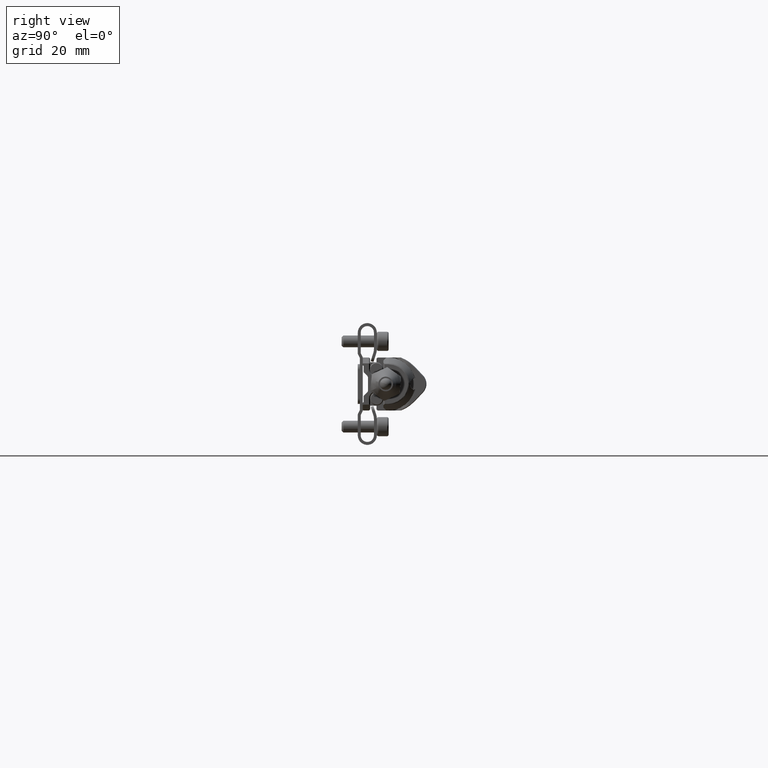
[diagram: clean part render]
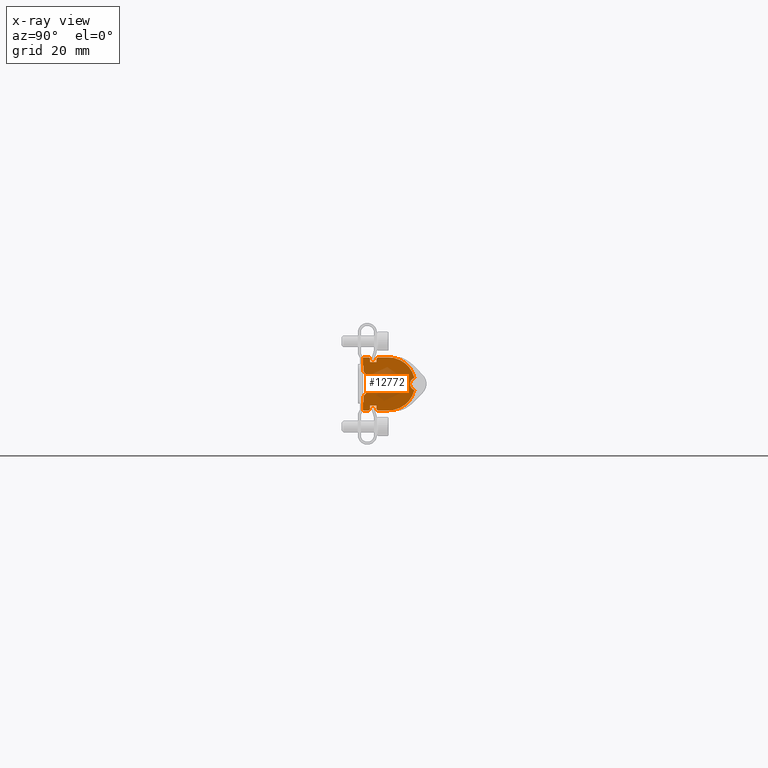
[diagram: x-ray — body ghosted, one internal face saturated and labeled with its STEP entity id]
A machine part, right view, then the same camera in x-ray: the body is ghosted and one INTERNAL B-rep face — a face not visible from any outside direction — is saturated and labeled: STEP entity #12772.
In plain terms, the highlighted planar face has unit normal (1, -0, 0).
Its self-contained STEP definition (entity closure, byte-faithful):
#337 = VERTEX_POINT ( 'NONE', #34687 ) ;
#349 = CARTESIAN_POINT ( 'NONE',  ( -0.1574803149606300579, -0.2992125984251967630, -0.3464566929133854334 ) ) ;
#409 = EDGE_CURVE ( 'NONE', #11359, #19109, #21300, .T. ) ;
#501 = VERTEX_POINT ( 'NONE', #18130 ) ;
#589 = ORIENTED_EDGE ( 'NONE', *, *, #2069, .F. ) ;
#700 = ORIENTED_EDGE ( 'NONE', *, *, #32594, .T. ) ;
#831 = DIRECTION ( 'NONE',  ( 1.000000000000000000, -1.033975794397574105E-25, 2.391543914929064682E-17 ) ) ;
#915 = CARTESIAN_POINT ( 'NONE',  ( -0.1574803149606300579, -0.3070866141732283561, 0.3543307086614176926 ) ) ;
#1008 = EDGE_CURVE ( 'NONE', #32174, #337, #20909, .T. ) ;
#1032 = VERTEX_POINT ( 'NONE', #31845 ) ;
#1144 = CARTESIAN_POINT ( 'NONE',  ( -0.1574803149606300579, -0.1232283464566929221, 0.3385826771653547285 ) ) ;
#1249 = DIRECTION ( 'NONE',  ( 2.391543914929064682E-17, 1.201068257667177748E-16, -1.000000000000000000 ) ) ;
#1311 = LINE ( 'NONE', #28216, #10103 ) ;
#1348 = EDGE_CURVE ( 'NONE', #26501, #11874, #23877, .T. ) ;
#1440 = CIRCLE ( 'NONE', #17148, 0.003937007874015741038 ) ;
#1471 = ORIENTED_EDGE ( 'NONE', *, *, #12889, .T. ) ;
#1636 = DIRECTION ( 'NONE',  ( 0.000000000000000000, 0.000000000000000000, 1.000000000000000000 ) ) ;
#1653 = EDGE_CURVE ( 'NONE', #33654, #18712, #4446, .T. ) ;
#1701 = CIRCLE ( 'NONE', #6206, 0.03937007874015747977 ) ;
#1736 = CARTESIAN_POINT ( 'NONE',  ( -0.1574803149606300579, -0.2952755905967039407, 0.2440944881539811040 ) ) ;
#1924 = CARTESIAN_POINT ( 'NONE',  ( -0.1574803149606300579, -0.2755905511811022612, -0.1656341252362201200 ) ) ;
#2069 = EDGE_CURVE ( 'NONE', #33654, #25708, #12878, .T. ) ;
#2100 = CARTESIAN_POINT ( 'NONE',  ( -0.1574803149606300579, -0.3070866141732283561, 0.3543307086614176926 ) ) ;
#2429 = ORIENTED_EDGE ( 'NONE', *, *, #16990, .T. ) ;
#2456 = CARTESIAN_POINT ( 'NONE',  ( -0.1574803149606300579, -0.1074803149116314166, -0.3543307086614169155 ) ) ;
#2461 = DIRECTION ( 'NONE',  ( 1.691076924432268610E-17, 0.7071067822865940711, -0.7071067800865009634 ) ) ;
#2505 = EDGE_CURVE ( 'NONE', #9558, #16097, #32032, .T. ) ;
#2510 = AXIS2_PLACEMENT_3D ( 'NONE', #29030, #26553, #26205 ) ;
#2565 = VERTEX_POINT ( 'NONE', #25094 ) ;
#2896 = EDGE_CURVE ( 'NONE', #10550, #9558, #23309, .T. ) ;
#2911 = VERTEX_POINT ( 'NONE', #21196 ) ;
#2914 = CARTESIAN_POINT ( 'NONE',  ( -0.1574803149606300579, -0.2244094488316446534, 0.3543307086639671533 ) ) ;
#3122 = AXIS2_PLACEMENT_3D ( 'NONE', #25038, #19921, #28356 ) ;
#3410 = CARTESIAN_POINT ( 'NONE',  ( -0.1574803149606300579, -0.3070866141732283561, 0.3464566929133862105 ) ) ;
#3467 = CARTESIAN_POINT ( 'NONE',  ( -0.1574803149606300579, -0.2952755906080846149, -0.2440944881189857918 ) ) ;
#3560 = DIRECTION ( 'NONE',  ( -1.000000000000000000, 1.033975794397574105E-25, -2.391543914929064682E-17 ) ) ;
#3607 = DIRECTION ( 'NONE',  ( 0.000000000000000000, 0.000000000000000000, -1.000000000000000000 ) ) ;
#3698 = AXIS2_PLACEMENT_3D ( 'NONE', #8192, #15737, #13805 ) ;
#4036 = DIRECTION ( 'NONE',  ( -1.000000000000000000, 1.033975794397574105E-25, -2.391543914929064682E-17 ) ) ;
#4119 = DIRECTION ( 'NONE',  ( -1.033975765673499961E-25, -1.000000000000000000, -1.201068257667177748E-16 ) ) ;
#4152 = VERTEX_POINT ( 'NONE', #17545 ) ;
#4237 = VECTOR ( 'NONE', #2461, 39.37007874015748143 ) ;
#4308 = CARTESIAN_POINT ( 'NONE',  ( -0.1574803149606300579, -0.2477517015304221693, -0.1099564259472146088 ) ) ;
#4446 = CIRCLE ( 'NONE', #24111, 0.003937007874015741038 ) ;
#4780 = LINE ( 'NONE', #33989, #32348 ) ;
#4834 = VERTEX_POINT ( 'NONE', #24913 ) ;
#5135 = ORIENTED_EDGE ( 'NONE', *, *, #23421, .T. ) ;
#5216 = CARTESIAN_POINT ( 'NONE',  ( -0.1574803149606300579, -0.2086614173228346081, 0.3385826771653547285 ) ) ;
#5393 = VERTEX_POINT ( 'NONE', #24132 ) ;
#5401 = DIRECTION ( 'NONE',  ( 1.000000000000000000, -1.033975794397574105E-25, 2.391543914929064682E-17 ) ) ;
#5630 = CARTESIAN_POINT ( 'NONE',  ( -0.1574803149606300579, 0.03856533019685044056, -0.3543307086614169155 ) ) ;
#5924 = EDGE_CURVE ( 'NONE', #21656, #18328, #26209, .T. ) ;
#6206 = AXIS2_PLACEMENT_3D ( 'NONE', #13937, #3560, #8846 ) ;
#6243 = DIRECTION ( 'NONE',  ( -1.000000000000000000, 1.033975794397574105E-25, -2.391543914929064682E-17 ) ) ;
#6307 = VERTEX_POINT ( 'NONE', #17382 ) ;
#6321 = EDGE_CURVE ( 'NONE', #2565, #23567, #25462, .T. ) ;
#6545 = VERTEX_POINT ( 'NONE', #31113 ) ;
#6588 = ORIENTED_EDGE ( 'NONE', *, *, #409, .T. ) ;
#6673 = DIRECTION ( 'NONE',  ( 0.000000000000000000, -2.602085213965210642E-15, -1.000000000000000000 ) ) ;
#6934 = ORIENTED_EDGE ( 'NONE', *, *, #5924, .T. ) ;
#7048 = CIRCLE ( 'NONE', #13774, 0.007874015748031516770 ) ;
#7184 = EDGE_CURVE ( 'NONE', #21656, #337, #7048, .T. ) ;
#7254 = CARTESIAN_POINT ( 'NONE',  ( -0.1574803149606300579, -0.2992125984251968740, 0.3464566929133862105 ) ) ;
#7286 = LINE ( 'NONE', #28747, #33963 ) ;
#7455 = CARTESIAN_POINT ( 'NONE',  ( -0.1574803149606300579, -0.2952755906536075337, 0.3543307086614176926 ) ) ;
#7649 = ORIENTED_EDGE ( 'NONE', *, *, #34146, .T. ) ;
#7694 = CARTESIAN_POINT ( 'NONE',  ( -0.1574803149606300579, -0.2086614173228346081, 0.3385826771653547285 ) ) ;
#7836 = LINE ( 'NONE', #13627, #26922 ) ;
#7904 = DIRECTION ( 'NONE',  ( 0.000000000000000000, 0.000000000000000000, 1.000000000000000000 ) ) ;
#8192 = CARTESIAN_POINT ( 'NONE',  ( -0.1574803149606300579, 0.03856533019685044056, 4.780733988912460139E-16 ) ) ;
#8270 = DIRECTION ( 'NONE',  ( -1.000000000000000000, 1.033975794397574105E-25, -2.391543914929064682E-17 ) ) ;
#8846 = DIRECTION ( 'NONE',  ( 0.000000000000000000, 0.000000000000000000, 1.000000000000000000 ) ) ;
#8880 = ORIENTED_EDGE ( 'NONE', *, *, #32303, .T. ) ;
#9128 = VECTOR ( 'NONE', #20692, 39.37007874015748143 ) ;
#9291 = VECTOR ( 'NONE', #18177, 39.37007874015748143 ) ;
#9307 = CARTESIAN_POINT ( 'NONE',  ( -0.1574803149606300579, -0.3070866141732282451, -0.3543307086614169155 ) ) ;
#9391 = VERTEX_POINT ( 'NONE', #4308 ) ;
#9558 = VERTEX_POINT ( 'NONE', #32277 ) ;
#9941 = CARTESIAN_POINT ( 'NONE',  ( -0.1574803149606300579, -0.1232283464566928527, -0.2913385826771650589 ) ) ;
#10098 = VERTEX_POINT ( 'NONE', #29062 ) ;
#10103 = VECTOR ( 'NONE', #4119, 39.37007874015748143 ) ;
#10335 = CIRCLE ( 'NONE', #30023, 0.01968503937007873988 ) ;
#10390 = DIRECTION ( 'NONE',  ( 2.391543914929064682E-17, 1.201068257667177748E-16, -1.000000000000000000 ) ) ;
#10550 = VERTEX_POINT ( 'NONE', #25165 ) ;
#10551 = EDGE_CURVE ( 'NONE', #29987, #10550, #30811, .T. ) ;
#10641 = CARTESIAN_POINT ( 'NONE',  ( -0.1574803149606300579, -0.2362204723614631796, 0.3543307086614176926 ) ) ;
#10804 = ORIENTED_EDGE ( 'NONE', *, *, #7184, .F. ) ;
#10813 = CIRCLE ( 'NONE', #19821, 0.03937007874015747977 ) ;
#10843 = ORIENTED_EDGE ( 'NONE', *, *, #17609, .T. ) ;
#10966 = VECTOR ( 'NONE', #20607, 39.37007874015748143 ) ;
#10987 = EDGE_CURVE ( 'NONE', #2565, #19109, #18207, .T. ) ;
#11021 = VERTEX_POINT ( 'NONE', #32549 ) ;
#11028 = ORIENTED_EDGE ( 'NONE', *, *, #25472, .T. ) ;
#11222 = VECTOR ( 'NONE', #26757, 39.37007874015748143 ) ;
#11235 = CARTESIAN_POINT ( 'NONE',  ( -0.1574803149606300579, -0.3070866141732283561, 0.3543307086614176926 ) ) ;
#11245 = ORIENTED_EDGE ( 'NONE', *, *, #30325, .F. ) ;
#11342 = CARTESIAN_POINT ( 'NONE',  ( -0.1574803149606300579, -0.1232283464738122142, 0.2913385826624019792 ) ) ;
#11359 = VERTEX_POINT ( 'NONE', #30425 ) ;
#11513 = CARTESIAN_POINT ( 'NONE',  ( -0.1574803149606300579, 0.4114990196062992545, 4.780733988912460139E-16 ) ) ;
#11514 = VECTOR ( 'NONE', #14233, 39.37007874015748143 ) ;
#11867 = ORIENTED_EDGE ( 'NONE', *, *, #1348, .T. ) ;
#11874 = VERTEX_POINT ( 'NONE', #5216 ) ;
#11971 = EDGE_CURVE ( 'NONE', #16097, #25708, #19803, .T. ) ;
#12041 = CARTESIAN_POINT ( 'NONE',  ( -0.1574803149606300579, -0.1232283464566929221, 0.3385826771653547285 ) ) ;
#12087 = VERTEX_POINT ( 'NONE', #3467 ) ;
#12096 = CIRCLE ( 'NONE', #33475, 0.007874015748031482076 ) ;
#12654 = DIRECTION ( 'NONE',  ( -1.000000000000000000, 1.033975794397574105E-25, -2.391543914929064682E-17 ) ) ;
#12772 = ADVANCED_FACE ( 'NONE', ( #22193 ), #32951, .T. ) ;
#12878 = CIRCLE ( 'NONE', #3698, 0.3543307086614173040 ) ;
#12889 = EDGE_CURVE ( 'NONE', #28407, #20715, #22427, .T. ) ;
#13023 = CARTESIAN_POINT ( 'NONE',  ( -0.1574803149606300579, -0.2244094488188976555, 0.3543307086614176926 ) ) ;
#13154 = ORIENTED_EDGE ( 'NONE', *, *, #16049, .F. ) ;
#13248 = EDGE_CURVE ( 'NONE', #12087, #20040, #7286, .T. ) ;
#13354 = ORIENTED_EDGE ( 'NONE', *, *, #2505, .T. ) ;
#13627 = CARTESIAN_POINT ( 'NONE',  ( -0.1574803149606300579, -0.2895099760236219955, -0.1517147004330704763 ) ) ;
#13737 = CIRCLE ( 'NONE', #33966, 0.08566121303149605570 ) ;
#13774 = AXIS2_PLACEMENT_3D ( 'NONE', #7254, #25550, #1636 ) ;
#13782 = CARTESIAN_POINT ( 'NONE',  ( -0.1574803149606300579, -0.2244094488316445979, -0.3543307086639660985 ) ) ;
#13786 = VECTOR ( 'NONE', #14625, 39.37007874015748143 ) ;
#13805 = DIRECTION ( 'NONE',  ( 0.000000000000000000, -1.204669080539449590E-16, 1.000000000000000000 ) ) ;
#13937 = CARTESIAN_POINT ( 'NONE',  ( -0.1574803149606300579, -0.2755905511811023167, -0.08211757629921219437 ) ) ;
#14158 = ORIENTED_EDGE ( 'NONE', *, *, #6321, .T. ) ;
#14233 = DIRECTION ( 'NONE',  ( 1.033975765673499961E-25, 1.000000000000000000, 1.201068257667177748E-16 ) ) ;
#14259 = CARTESIAN_POINT ( 'NONE',  ( -0.1574803149606300579, -0.2086614173427737418, -0.2913385826624011465 ) ) ;
#14274 = DIRECTION ( 'NONE',  ( 1.000000000000000000, -1.033975794397573876E-25, 2.391543914929064682E-17 ) ) ;
#14625 = DIRECTION ( 'NONE',  ( 1.691076927063079054E-17, 0.7071067811865471286, -0.7071067811865479058 ) ) ;
#14794 = EDGE_CURVE ( 'NONE', #4834, #28407, #31240, .T. ) ;
#15007 = DIRECTION ( 'NONE',  ( -2.391543914929064682E-17, -1.201068257667177748E-16, 1.000000000000000000 ) ) ;
#15225 = CARTESIAN_POINT ( 'NONE',  ( -0.1574803149606300579, -0.2992125984251968185, 0.2440944881889767493 ) ) ;
#15737 = DIRECTION ( 'NONE',  ( -1.000000000000000000, 1.033975794397574105E-25, -2.391543914929064682E-17 ) ) ;
#15886 = ORIENTED_EDGE ( 'NONE', *, *, #10987, .F. ) ;
#15972 = DIRECTION ( 'NONE',  ( -1.033975765673499961E-25, -1.000000000000000000, -1.201068257667177748E-16 ) ) ;
#16049 = EDGE_CURVE ( 'NONE', #4152, #1032, #28345, .T. ) ;
#16097 = VERTEX_POINT ( 'NONE', #2456 ) ;
#16109 = DIRECTION ( 'NONE',  ( 2.391543914929064682E-17, 1.201068257667177748E-16, -1.000000000000000000 ) ) ;
#16276 = CARTESIAN_POINT ( 'NONE',  ( -0.1574803149606300579, -0.1232283464566929221, 0.3385826771653547285 ) ) ;
#16368 = CIRCLE ( 'NONE', #27048, 0.3543307086614173040 ) ;
#16612 = ORIENTED_EDGE ( 'NONE', *, *, #32428, .F. ) ;
#16753 = VERTEX_POINT ( 'NONE', #25971 ) ;
#16873 = CARTESIAN_POINT ( 'NONE',  ( -0.1574803149606300579, -0.3070866141732283561, 0.2519685039370082591 ) ) ;
#16987 = ORIENTED_EDGE ( 'NONE', *, *, #2896, .T. ) ;
#16990 = EDGE_CURVE ( 'NONE', #6545, #34677, #16368, .T. ) ;
#17148 = AXIS2_PLACEMENT_3D ( 'NONE', #17438, #20080, #25187 ) ;
#17169 = CARTESIAN_POINT ( 'NONE',  ( -0.1574803149606300579, -0.1074803149606298469, -0.3543307086614169155 ) ) ;
#17319 = DIRECTION ( 'NONE',  ( 2.391543914929064682E-17, 1.201068257667177748E-16, -1.000000000000000000 ) ) ;
#17382 = CARTESIAN_POINT ( 'NONE',  ( -0.1574803149606300579, -0.2086614173228345526, -0.3385826771653540068 ) ) ;
#17415 = CARTESIAN_POINT ( 'NONE',  ( -0.1574803149606300579, -0.3070866141732282451, -0.2913385826574800275 ) ) ;
#17438 = CARTESIAN_POINT ( 'NONE',  ( -0.1574803149606300579, 0.3788770910629921662, 0.08344849291338625463 ) ) ;
#17545 = CARTESIAN_POINT ( 'NONE',  ( -0.1574803149606300579, -0.2895099760050149351, 0.1517147004107921027 ) ) ;
#17609 = EDGE_CURVE ( 'NONE', #11021, #9391, #1701, .T. ) ;
#17692 = VECTOR ( 'NONE', #25408, 39.37007874015748854 ) ;
#17716 = AXIS2_PLACEMENT_3D ( 'NONE', #915, #14274, #1249 ) ;
#17724 = ORIENTED_EDGE ( 'NONE', *, *, #20491, .T. ) ;
#17734 = VECTOR ( 'NONE', #34578, 39.37007874015748143 ) ;
#17917 = ORIENTED_EDGE ( 'NONE', *, *, #20808, .T. ) ;
#18128 = LINE ( 'NONE', #13023, #10966 ) ;
#18130 = CARTESIAN_POINT ( 'NONE',  ( -0.1574803149606300579, -0.2895099760050148796, -0.1517147004107909647 ) ) ;
#18177 = DIRECTION ( 'NONE',  ( 2.391543914929064682E-17, 1.201068257667177748E-16, -1.000000000000000000 ) ) ;
#18207 = CIRCLE ( 'NONE', #20464, 0.007874015748031516770 ) ;
#18267 = CIRCLE ( 'NONE', #3122, 0.007874015748031482076 ) ;
#18328 = VERTEX_POINT ( 'NONE', #16873 ) ;
#18416 = DIRECTION ( 'NONE',  ( -2.391543914929064682E-17, -1.201068257667177748E-16, 1.000000000000000000 ) ) ;
#18712 = VERTEX_POINT ( 'NONE', #30375 ) ;
#18742 = CARTESIAN_POINT ( 'NONE',  ( -0.1574803149606300579, -0.2244094488188975445, -0.3543307086614169155 ) ) ;
#19109 = VERTEX_POINT ( 'NONE', #25065 ) ;
#19291 = DIRECTION ( 'NONE',  ( 0.000000000000000000, -1.903377147252329919E-15, 1.000000000000000000 ) ) ;
#19446 = EDGE_LOOP ( 'NONE', ( #25079, #16987, #13354, #21293, #589, #29199, #21732, #16612, #2429, #17917, #32128, #1471, #7649, #11867, #19752, #30688, #10804, #6934, #23941, #26653, #700, #13154, #8880, #25938, #26826, #10843, #21097, #11245, #5135, #29548, #31608, #6588, #15886, #14158, #17724, #11028 ) ) ;
#19487 = DIRECTION ( 'NONE',  ( 0.000000000000000000, 3.469446951953620500E-14, 1.000000000000000000 ) ) ;
#19744 = CARTESIAN_POINT ( 'NONE',  ( -0.1574803149606300579, -0.2895099760236220510, 0.1517147004330711979 ) ) ;
#19752 = ORIENTED_EDGE ( 'NONE', *, *, #32632, .T. ) ;
#19803 = LINE ( 'NONE', #17169, #23319 ) ;
#19821 = AXIS2_PLACEMENT_3D ( 'NONE', #20209, #4036, #6673 ) ;
#19921 = DIRECTION ( 'NONE',  ( -1.000000000000000000, 1.033975794397574105E-25, -2.391543914929064682E-17 ) ) ;
#20040 = VERTEX_POINT ( 'NONE', #22818 ) ;
#20080 = DIRECTION ( 'NONE',  ( -1.000000000000000000, 1.033975794397574105E-25, -2.391543914929064682E-17 ) ) ;
#20161 = VECTOR ( 'NONE', #18416, 39.37007874015748143 ) ;
#20209 = CARTESIAN_POINT ( 'NONE',  ( -0.1574803149606300579, -0.2755905511811023167, 0.08211757629921294377 ) ) ;
#20464 = AXIS2_PLACEMENT_3D ( 'NONE', #349, #8270, #7904 ) ;
#20491 = EDGE_CURVE ( 'NONE', #23567, #6307, #33899, .T. ) ;
#20607 = DIRECTION ( 'NONE',  ( -1.691076927063079054E-17, -0.7071067811865471286, 0.7071067811865479058 ) ) ;
#20642 = EDGE_CURVE ( 'NONE', #2911, #11021, #32491, .T. ) ;
#20686 = DIRECTION ( 'NONE',  ( 1.033975765673499961E-25, 1.000000000000000000, 1.201068257667177748E-16 ) ) ;
#20692 = DIRECTION ( 'NONE',  ( -1.033975765673499961E-25, -1.000000000000000000, -1.201068257667177748E-16 ) ) ;
#20715 = VERTEX_POINT ( 'NONE', #11342 ) ;
#20808 = EDGE_CURVE ( 'NONE', #34677, #4834, #1311, .T. ) ;
#20909 = LINE ( 'NONE', #2100, #33106 ) ;
#21071 = VECTOR ( 'NONE', #20686, 39.37007874015748143 ) ;
#21097 = ORIENTED_EDGE ( 'NONE', *, *, #25355, .F. ) ;
#21196 = CARTESIAN_POINT ( 'NONE',  ( -0.1574803149606300579, -0.2362204724012040846, 0.08211757629921294377 ) ) ;
#21293 = ORIENTED_EDGE ( 'NONE', *, *, #11971, .T. ) ;
#21300 = LINE ( 'NONE', #29396, #11222 ) ;
#21656 = VERTEX_POINT ( 'NONE', #3410 ) ;
#21732 = ORIENTED_EDGE ( 'NONE', *, *, #30868, .T. ) ;
#21785 = CARTESIAN_POINT ( 'NONE',  ( -0.1574803149606300579, 0.3827008187155472307, -0.08438611641395545038 ) ) ;
#21935 = CARTESIAN_POINT ( 'NONE',  ( -0.1574803149606300579, 0.03856533019685044056, 4.780733988912460139E-16 ) ) ;
#22112 = CARTESIAN_POINT ( 'NONE',  ( -0.1574803149606300579, 0.3788770910629921662, -0.08344849291338539421 ) ) ;
#22193 = FACE_OUTER_BOUND ( 'NONE', #19446, .T. ) ;
#22427 = LINE ( 'NONE', #1144, #30108 ) ;
#22818 = CARTESIAN_POINT ( 'NONE',  ( -0.1574803149606300579, -0.2992125984251967630, -0.2440944881889759999 ) ) ;
#22973 = LINE ( 'NONE', #15225, #21071 ) ;
#23309 = LINE ( 'NONE', #9941, #17734 ) ;
#23319 = VECTOR ( 'NONE', #33197, 39.37007874015748143 ) ;
#23326 = CARTESIAN_POINT ( 'NONE',  ( -0.1574803149606300579, -0.2086614173228346081, 0.2913385826624019792 ) ) ;
#23332 = LINE ( 'NONE', #34082, #9128 ) ;
#23421 = EDGE_CURVE ( 'NONE', #16753, #12087, #31575, .T. ) ;
#23464 = DIRECTION ( 'NONE',  ( -1.033975765673499961E-25, -1.000000000000000000, -1.201068257667177748E-16 ) ) ;
#23567 = VERTEX_POINT ( 'NONE', #13782 ) ;
#23747 = EDGE_CURVE ( 'NONE', #5393, #18328, #18267, .T. ) ;
#23877 = LINE ( 'NONE', #7694, #20161 ) ;
#23941 = ORIENTED_EDGE ( 'NONE', *, *, #23747, .F. ) ;
#24092 = DIRECTION ( 'NONE',  ( 2.391543914929064682E-17, 1.201068257667177748E-16, -1.000000000000000000 ) ) ;
#24111 = AXIS2_PLACEMENT_3D ( 'NONE', #22112, #831, #19487 ) ;
#24132 = CARTESIAN_POINT ( 'NONE',  ( -0.1574803149606300579, -0.2992125984251968185, 0.2440944881889767493 ) ) ;
#24357 = DIRECTION ( 'NONE',  ( -1.691076912440451637E-17, 0.7071067811865479058, 0.7071067811865471286 ) ) ;
#24363 = VECTOR ( 'NONE', #33454, 39.37007874015748143 ) ;
#24913 = CARTESIAN_POINT ( 'NONE',  ( -0.1574803149606300579, -0.1074803149197976343, 0.3543307086695841601 ) ) ;
#25038 = CARTESIAN_POINT ( 'NONE',  ( -0.1574803149606300579, -0.2992125984251968185, 0.2519685039370082591 ) ) ;
#25065 = CARTESIAN_POINT ( 'NONE',  ( -0.1574803149606300579, -0.3070866141732282451, -0.3464566929133854334 ) ) ;
#25079 = ORIENTED_EDGE ( 'NONE', *, *, #10551, .T. ) ;
#25094 = CARTESIAN_POINT ( 'NONE',  ( -0.1574803149606300579, -0.2992125984251967630, -0.3543307086614169155 ) ) ;
#25165 = CARTESIAN_POINT ( 'NONE',  ( -0.1574803149606300579, -0.1232283464566928527, -0.2913385826624011465 ) ) ;
#25187 = DIRECTION ( 'NONE',  ( 0.000000000000000000, 0.000000000000000000, 1.000000000000000000 ) ) ;
#25355 = EDGE_CURVE ( 'NONE', #501, #9391, #7836, .T. ) ;
#25408 = DIRECTION ( 'NONE',  ( 1.691076912440450096E-17, -0.7071067811865483499, -0.7071067811865465735 ) ) ;
#25462 = LINE ( 'NONE', #9307, #11514 ) ;
#25472 = EDGE_CURVE ( 'NONE', #6307, #29987, #26751, .T. ) ;
#25521 = LINE ( 'NONE', #19744, #13786 ) ;
#25550 = DIRECTION ( 'NONE',  ( -1.000000000000000000, 1.033975794397574105E-25, -2.391543914929064682E-17 ) ) ;
#25708 = VERTEX_POINT ( 'NONE', #5630 ) ;
#25934 = VERTEX_POINT ( 'NONE', #1736 ) ;
#25938 = ORIENTED_EDGE ( 'NONE', *, *, #34833, .T. ) ;
#25971 = CARTESIAN_POINT ( 'NONE',  ( -0.1574803149606300579, -0.2952755906023942223, -0.1656341252362201200 ) ) ;
#26205 = DIRECTION ( 'NONE',  ( 0.000000000000000000, 0.000000000000000000, -1.000000000000000000 ) ) ;
#26209 = LINE ( 'NONE', #11235, #32887 ) ;
#26403 = VECTOR ( 'NONE', #32664, 39.37007874015748143 ) ;
#26501 = VERTEX_POINT ( 'NONE', #23326 ) ;
#26553 = DIRECTION ( 'NONE',  ( -1.000000000000000000, 1.033975794397574105E-25, -2.391543914929064682E-17 ) ) ;
#26558 = CARTESIAN_POINT ( 'NONE',  ( -0.1574803149606300579, -0.1232283464566928527, -0.3385826771653540068 ) ) ;
#26653 = ORIENTED_EDGE ( 'NONE', *, *, #31881, .T. ) ;
#26751 = LINE ( 'NONE', #34026, #32606 ) ;
#26757 = DIRECTION ( 'NONE',  ( 2.391543914929064682E-17, 1.201068257667177748E-16, -1.000000000000000000 ) ) ;
#26826 = ORIENTED_EDGE ( 'NONE', *, *, #20642, .T. ) ;
#26834 = CARTESIAN_POINT ( 'NONE',  ( -0.1574803149606300579, -0.2992125984251967630, -0.2519685039370075375 ) ) ;
#26922 = VECTOR ( 'NONE', #24357, 39.37007874015748143 ) ;
#27048 = AXIS2_PLACEMENT_3D ( 'NONE', #21935, #5401, #19291 ) ;
#28216 = CARTESIAN_POINT ( 'NONE',  ( -0.1574803149606300579, -0.3070866141732283561, 0.3543307086614176926 ) ) ;
#28253 = VERTEX_POINT ( 'NONE', #29310 ) ;
#28345 = CIRCLE ( 'NONE', #2510, 0.01968503937007873988 ) ;
#28356 = DIRECTION ( 'NONE',  ( 0.000000000000000000, 0.000000000000000000, 1.000000000000000000 ) ) ;
#28407 = VERTEX_POINT ( 'NONE', #16276 ) ;
#28747 = CARTESIAN_POINT ( 'NONE',  ( -0.1574803149606300579, -0.2992125984251967630, -0.2440944881889759999 ) ) ;
#29030 = CARTESIAN_POINT ( 'NONE',  ( -0.1574803149606300579, -0.2755905511811023167, 0.1656341252362207861 ) ) ;
#29062 = CARTESIAN_POINT ( 'NONE',  ( -0.1574803149606300579, 0.3803105211884074133, 0.07978170833821263130 ) ) ;
#29199 = ORIENTED_EDGE ( 'NONE', *, *, #1653, .T. ) ;
#29232 = VECTOR ( 'NONE', #16109, 39.37007874015748143 ) ;
#29310 = CARTESIAN_POINT ( 'NONE',  ( -0.1574803149606300579, -0.2477517015304222248, 0.1099564259472157052 ) ) ;
#29396 = CARTESIAN_POINT ( 'NONE',  ( -0.1574803149606300579, -0.3070866141732283561, 0.3543307086614176926 ) ) ;
#29548 = ORIENTED_EDGE ( 'NONE', *, *, #13248, .T. ) ;
#29987 = VERTEX_POINT ( 'NONE', #14259 ) ;
#30023 = AXIS2_PLACEMENT_3D ( 'NONE', #1924, #12654, #31665 ) ;
#30108 = VECTOR ( 'NONE', #17319, 39.37007874015748143 ) ;
#30325 = EDGE_CURVE ( 'NONE', #16753, #501, #10335, .T. ) ;
#30375 = CARTESIAN_POINT ( 'NONE',  ( -0.1574803149606300579, 0.3803105211910097760, -0.07978170834512157694 ) ) ;
#30425 = CARTESIAN_POINT ( 'NONE',  ( -0.1574803149606300579, -0.3070866141732282451, -0.2519685039370075375 ) ) ;
#30688 = ORIENTED_EDGE ( 'NONE', *, *, #1008, .T. ) ;
#30811 = LINE ( 'NONE', #17415, #24363 ) ;
#30868 = EDGE_CURVE ( 'NONE', #18712, #10098, #13737, .T. ) ;
#31113 = CARTESIAN_POINT ( 'NONE',  ( -0.1574803149606300579, 0.3827008187031043507, 0.08438611646469847127 ) ) ;
#31240 = LINE ( 'NONE', #12041, #17692 ) ;
#31575 = LINE ( 'NONE', #7455, #9291 ) ;
#31608 = ORIENTED_EDGE ( 'NONE', *, *, #32221, .F. ) ;
#31665 = DIRECTION ( 'NONE',  ( 0.000000000000000000, 0.000000000000000000, 1.000000000000000000 ) ) ;
#31845 = CARTESIAN_POINT ( 'NONE',  ( -0.1574803149606300579, -0.2952755905853232110, 0.1656341252362207861 ) ) ;
#31881 = EDGE_CURVE ( 'NONE', #5393, #25934, #22973, .T. ) ;
#31958 = DIRECTION ( 'NONE',  ( 0.000000000000000000, 0.000000000000000000, 1.000000000000000000 ) ) ;
#32032 = LINE ( 'NONE', #26558, #4237 ) ;
#32128 = ORIENTED_EDGE ( 'NONE', *, *, #14794, .T. ) ;
#32174 = VERTEX_POINT ( 'NONE', #2914 ) ;
#32221 = EDGE_CURVE ( 'NONE', #11359, #20040, #12096, .T. ) ;
#32277 = CARTESIAN_POINT ( 'NONE',  ( -0.1574803149606300579, -0.1232283464566928527, -0.3385826771653540068 ) ) ;
#32303 = EDGE_CURVE ( 'NONE', #4152, #28253, #25521, .T. ) ;
#32348 = VECTOR ( 'NONE', #10390, 39.37007874015748143 ) ;
#32428 = EDGE_CURVE ( 'NONE', #6545, #10098, #1440, .T. ) ;
#32491 = LINE ( 'NONE', #10641, #29232 ) ;
#32549 = CARTESIAN_POINT ( 'NONE',  ( -0.1574803149606300579, -0.2362204724012040846, -0.08211757629921219437 ) ) ;
#32594 = EDGE_CURVE ( 'NONE', #25934, #1032, #4780, .T. ) ;
#32606 = VECTOR ( 'NONE', #15007, 39.37007874015748143 ) ;
#32632 = EDGE_CURVE ( 'NONE', #11874, #32174, #18128, .T. ) ;
#32664 = DIRECTION ( 'NONE',  ( -1.691076912440456259E-17, 0.7071067811865459074, 0.7071067811865491270 ) ) ;
#32887 = VECTOR ( 'NONE', #24092, 39.37007874015748143 ) ;
#32951 = PLANE ( 'NONE',  #17716 ) ;
#33106 = VECTOR ( 'NONE', #15972, 39.37007874015748143 ) ;
#33197 = DIRECTION ( 'NONE',  ( 1.033975765673499961E-25, 1.000000000000000000, 1.201068257667177748E-16 ) ) ;
#33257 = CARTESIAN_POINT ( 'NONE',  ( -0.1574803149606300579, 0.03856533019685037117, 0.3543307086614176926 ) ) ;
#33454 = DIRECTION ( 'NONE',  ( 1.033975765673499961E-25, 1.000000000000000000, 1.201068257667177748E-16 ) ) ;
#33475 = AXIS2_PLACEMENT_3D ( 'NONE', #26834, #34592, #31958 ) ;
#33654 = VERTEX_POINT ( 'NONE', #21785 ) ;
#33899 = LINE ( 'NONE', #18742, #26403 ) ;
#33963 = VECTOR ( 'NONE', #23464, 39.37007874015748143 ) ;
#33966 = AXIS2_PLACEMENT_3D ( 'NONE', #11513, #6243, #3607 ) ;
#33989 = CARTESIAN_POINT ( 'NONE',  ( -0.1574803149606300579, -0.2952755906194654001, 0.3543307086614176926 ) ) ;
#34026 = CARTESIAN_POINT ( 'NONE',  ( -0.1574803149606300579, -0.2086614173228345526, -0.3385826771653540068 ) ) ;
#34082 = CARTESIAN_POINT ( 'NONE',  ( -0.1574803149606300579, -0.3070866141732283561, 0.2913385826574806936 ) ) ;
#34146 = EDGE_CURVE ( 'NONE', #20715, #26501, #23332, .T. ) ;
#34578 = DIRECTION ( 'NONE',  ( 2.391543914929064682E-17, 1.201068257667177748E-16, -1.000000000000000000 ) ) ;
#34592 = DIRECTION ( 'NONE',  ( -1.000000000000000000, 1.033975794397574105E-25, -2.391543914929064682E-17 ) ) ;
#34677 = VERTEX_POINT ( 'NONE', #33257 ) ;
#34687 = CARTESIAN_POINT ( 'NONE',  ( -0.1574803149606300579, -0.2992125984251968740, 0.3543307086614176926 ) ) ;
#34833 = EDGE_CURVE ( 'NONE', #28253, #2911, #10813, .T. ) ;